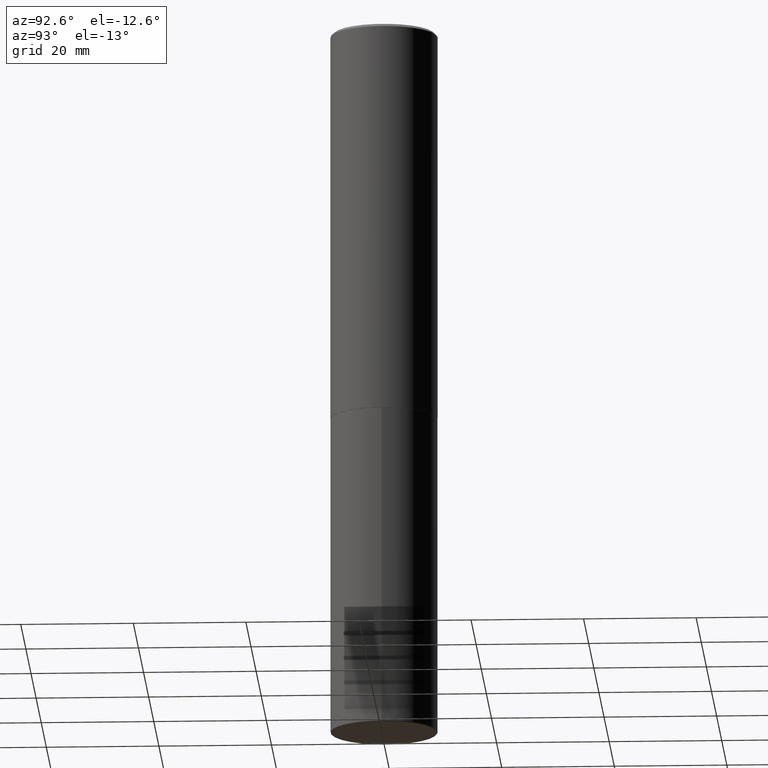
[diagram: clean part render]
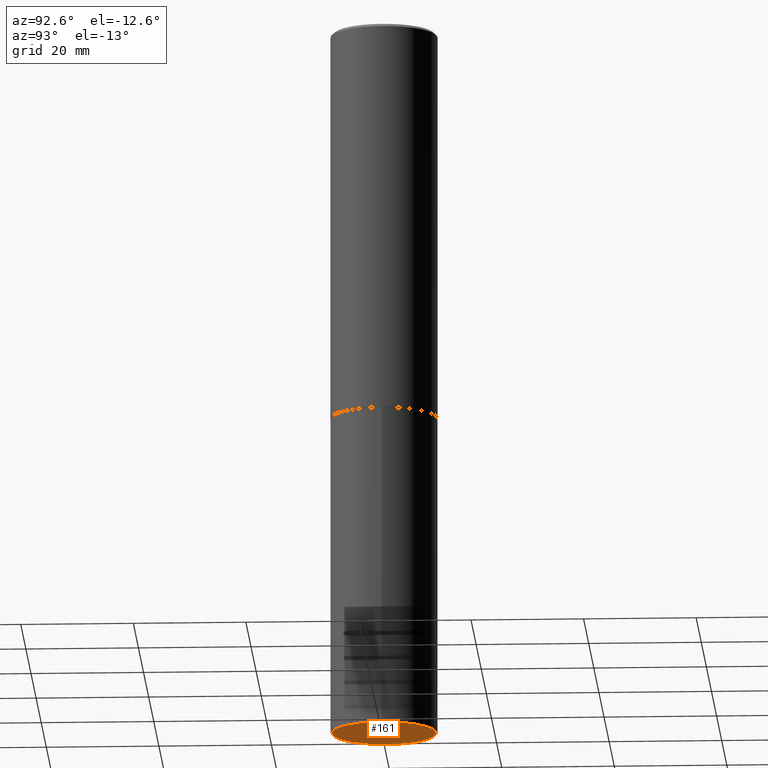
[diagram: same view with one face highlighted and labeled with its STEP entity id]
A machine part, auxiliary view. The second image highlights one B-rep face of the part: STEP entity #161.
In plain terms, the highlighted planar face has unit normal (0, -0, -1).
Its self-contained STEP definition (entity closure, byte-faithful):
#9 = CIRCLE ( 'NONE', #366, 0.3650000000000000466 ) ;
#23 = DIRECTION ( 'NONE',  ( 1.000000000000000000, -6.982962677686270655E-15, 0.000000000000000000 ) ) ;
#86 = EDGE_CURVE ( 'NONE', #198, #337, #359, .T. ) ;
#93 = AXIS2_PLACEMENT_3D ( 'NONE', #293, #290, #325 ) ;
#106 = ORIENTED_EDGE ( 'NONE', *, *, #86, .F. ) ;
#117 = FACE_OUTER_BOUND ( 'NONE', #281, .T. ) ;
#161 = ADVANCED_FACE ( 'NONE', ( #117 ), #382, .T. ) ;
#188 = DIRECTION ( 'NONE',  ( -2.445468806185136597E-29, 3.491481338843145583E-15, 1.000000000000000000 ) ) ;
#198 = VERTEX_POINT ( 'NONE', #322 ) ;
#222 = DIRECTION ( 'NONE',  ( 1.000000000000000000, -6.982962677686270655E-15, 0.000000000000000000 ) ) ;
#225 = EDGE_CURVE ( 'NONE', #337, #198, #9, .T. ) ;
#242 = CARTESIAN_POINT ( 'NONE',  ( -0.3650000000000000466, -1.481094116520914498E-14, -5.000000000000000888 ) ) ;
#265 = AXIS2_PLACEMENT_3D ( 'NONE', #403, #287, #23 ) ;
#281 = EDGE_LOOP ( 'NONE', ( #106, #373 ) ) ;
#287 = DIRECTION ( 'NONE',  ( -2.445468806185136597E-29, 3.491481338843145583E-15, 1.000000000000000000 ) ) ;
#290 = DIRECTION ( 'NONE',  ( 2.438088387897960049E-29, -3.491481338843145188E-15, -1.000000000000000000 ) ) ;
#293 = CARTESIAN_POINT ( 'NONE',  ( 1.774526178394363037E-29, -3.242643679648566706E-14, -5.000000000000000000 ) ) ;
#322 = CARTESIAN_POINT ( 'NONE',  ( 0.3650000000000000466, -2.000618807157122291E-14, -5.000000000000000888 ) ) ;
#325 = DIRECTION ( 'NONE',  ( -1.000000000000000000, 6.982962677686265922E-15, -4.876176775795935793E-29 ) ) ;
#326 = CARTESIAN_POINT ( 'NONE',  ( 1.222734403092568523E-28, -1.745740669421573304E-14, -5.000000000000000888 ) ) ;
#337 = VERTEX_POINT ( 'NONE', #242 ) ;
#359 = CIRCLE ( 'NONE', #265, 0.3650000000000000466 ) ;
#366 = AXIS2_PLACEMENT_3D ( 'NONE', #326, #188, #222 ) ;
#373 = ORIENTED_EDGE ( 'NONE', *, *, #225, .F. ) ;
#382 = PLANE ( 'NONE',  #93 ) ;
#403 = CARTESIAN_POINT ( 'NONE',  ( 1.222734403092568523E-28, -1.745740669421573304E-14, -5.000000000000000888 ) ) ;